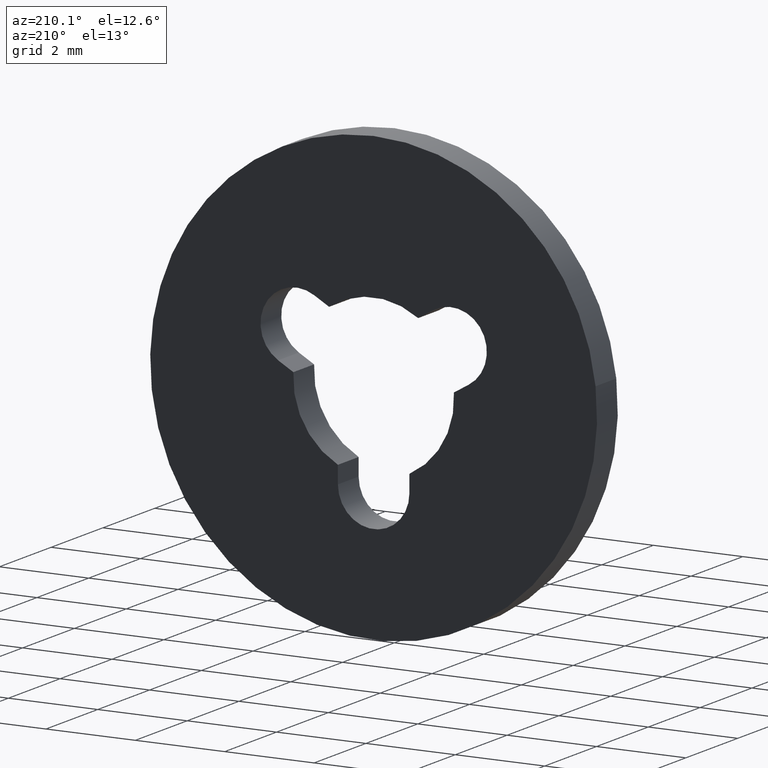
[diagram: clean part render]
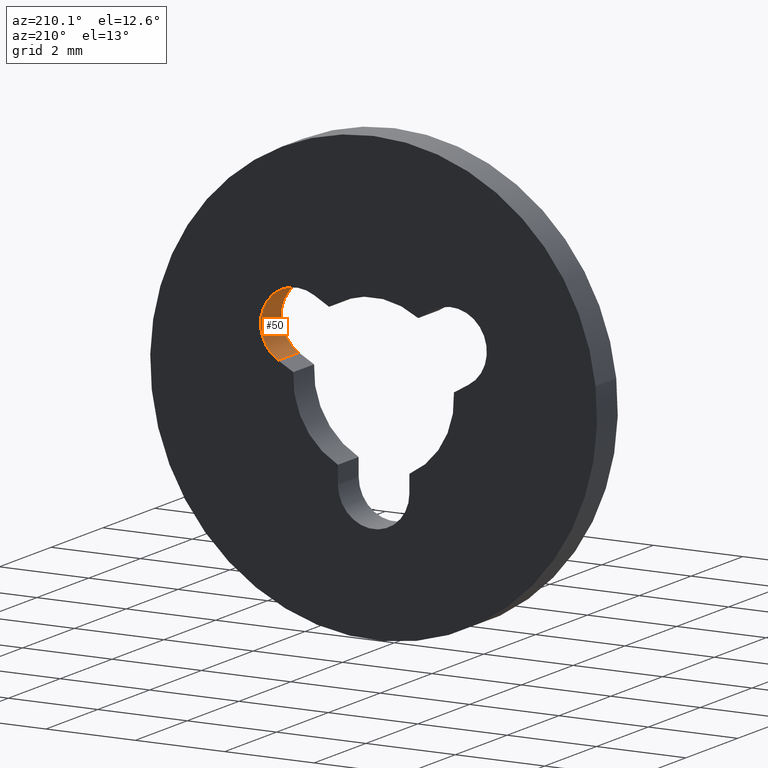
[diagram: same view with one face highlighted and labeled with its STEP entity id]
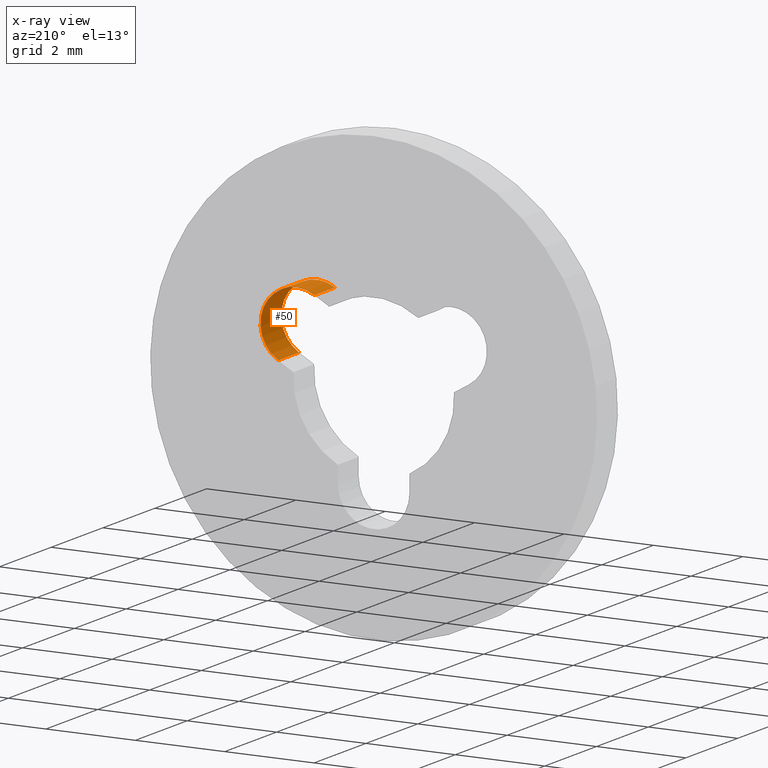
[diagram: x-ray of the same camera — body ghosted, the highlighted face saturated]
A machine part, auxiliary view. The second image highlights one B-rep face of the part: STEP entity #50.
The next image is the same camera in x-ray: the body ghosted, the highlighted face saturated — about 0% of this face is hidden behind the body in this view.
In plain terms, the highlighted cylindrical surface (partial cylindrical patch) has radius 0.8 mm, axis along (-0, -1, -0).
Its self-contained STEP definition (entity closure, byte-faithful):
#50=ADVANCED_FACE('',(#159),#158,.F.);
#158=CYLINDRICAL_SURFACE('',#273,8.00000000000E-01);
#159=FACE_OUTER_BOUND('',#274,.T.);
#270=CARTESIAN_POINT('',(1.73210000000E+00,-2.05000000000E-02,1.00000000000E+00));
#271=DIRECTION('',(-0.00000000000E+00,-1.00000000000E+00,-0.00000000000E+00));
#272=DIRECTION('',(-8.67088435685E-01,0.00000000000E+00,-4.98154237864E-01));
#273=AXIS2_PLACEMENT_3D('',#270,#271,#272);
#274=EDGE_LOOP('',(#362,#363,#364,#365));
#362=ORIENTED_EDGE('',*,*,#415,.T.);
#363=ORIENTED_EDGE('',*,*,#426,.F.);
#364=ORIENTED_EDGE('',*,*,#395,.F.);
#365=ORIENTED_EDGE('',*,*,#427,.T.);
#395=EDGE_CURVE('',#475,#482,#483,.T.);
#415=EDGE_CURVE('',#622,#615,#623,.T.);
#426=EDGE_CURVE('',#482,#615,#690,.T.);
#427=EDGE_CURVE('',#475,#622,#696,.T.);
#475=VERTEX_POINT('',#756);
#482=VERTEX_POINT('',#760);
#483=CIRCLE('',#764,8.00000000000E-01);
#615=VERTEX_POINT('',#847);
#622=VERTEX_POINT('',#851);
#623=CIRCLE('',#855,8.00000000000E-01);
#690=LINE('',#888,#889);
#696=LINE('',#891,#892);
#756=CARTESIAN_POINT('',(2.13666155815E+00,8.00000000000E-01,3.09833392821E-01));
#760=CARTESIAN_POINT('',(1.32753844185E+00,8.00000000000E-01,1.69016660718E+00));
#761=CARTESIAN_POINT('',(1.73210000000E+00,8.00000000000E-01,1.00000000000E+00));
#762=DIRECTION('',(-7.98165477205E-17,-1.00000000000E+00,-4.67868288270E-17));
#763=DIRECTION('',(5.05701947691E-01,-7.15904271516E-33,-8.62708258974E-01));
#764=AXIS2_PLACEMENT_3D('',#761,#762,#763);
#847=CARTESIAN_POINT('',(1.32753844185E+00,0.00000000000E+00,1.69016660718E+00));
#851=CARTESIAN_POINT('',(2.13666155815E+00,0.00000000000E+00,3.09833392821E-01));
#852=CARTESIAN_POINT('',(1.73210000000E+00,0.00000000000E+00,1.00000000000E+00));
#853=DIRECTION('',(0.00000000000E+00,-1.00000000000E+00,0.00000000000E+00));
#854=DIRECTION('',(5.05701947691E-01,0.00000000000E+00,-8.62708258974E-01));
#855=AXIS2_PLACEMENT_3D('',#852,#853,#854);
#888=CARTESIAN_POINT('',(1.32753844185E+00,8.00000000000E-01,1.69016660718E+00));
#889=VECTOR('',#890,8.00000000000E-01);
#890=DIRECTION('',(0.00000000000E+00,-1.00000000000E+00,0.00000000000E+00));
#891=CARTESIAN_POINT('',(2.13666155815E+00,8.00000000000E-01,3.09833392821E-01));
#892=VECTOR('',#893,8.00000000000E-01);
#893=DIRECTION('',(0.00000000000E+00,-1.00000000000E+00,0.00000000000E+00));